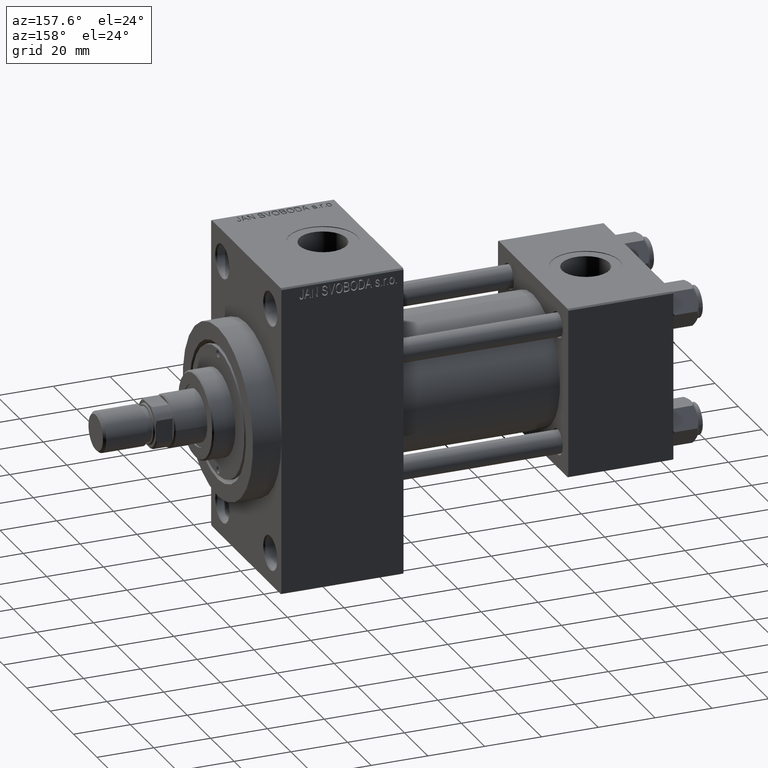
[diagram: clean part render]
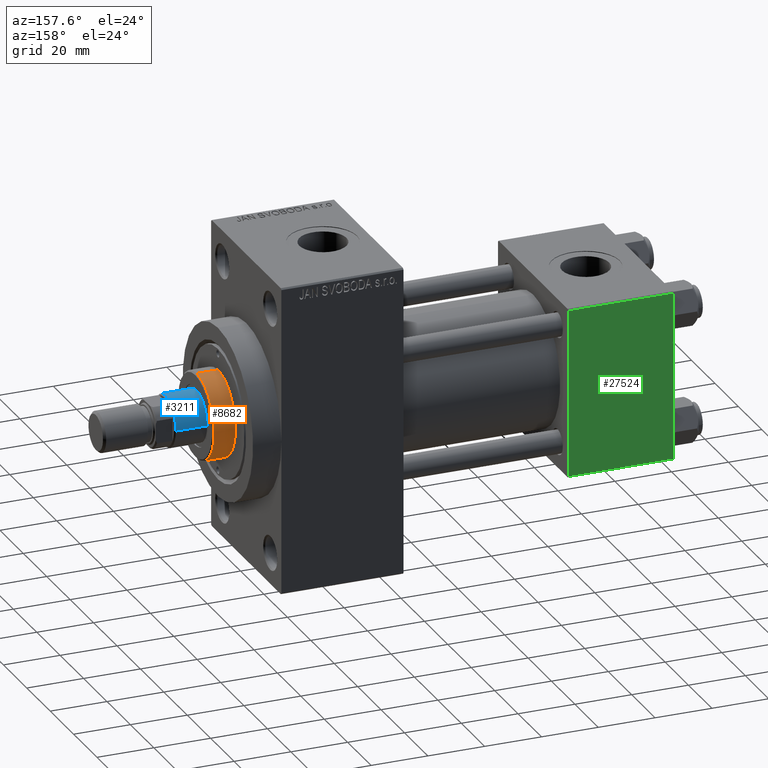
[diagram: same view with three faces highlighted in distinct colors, each labeled with its STEP entity id]
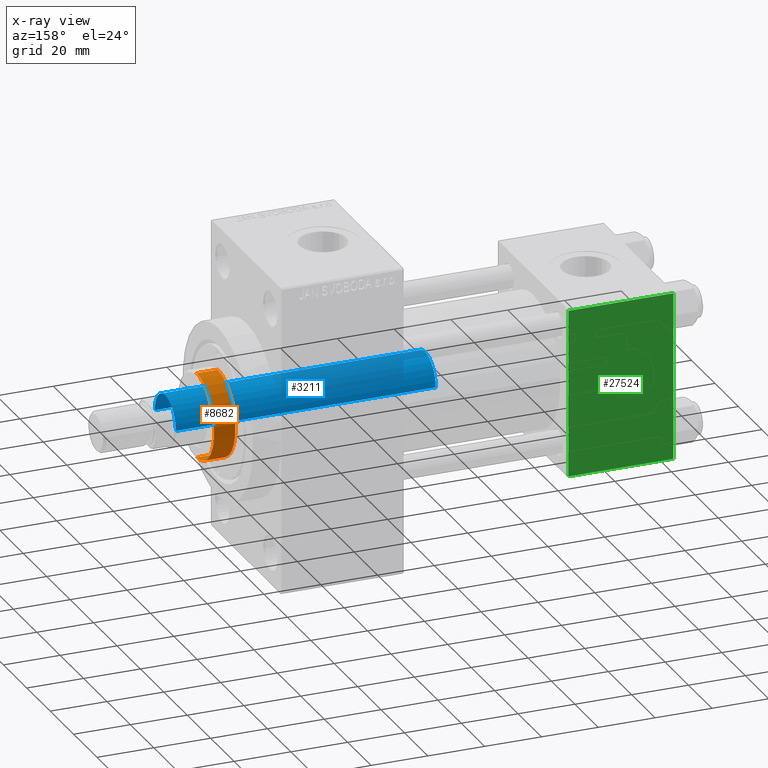
[diagram: x-ray of the same camera — body ghosted, the three highlighted faces saturated]
A machine part, auxiliary view with three faces highlighted in distinct colors.
The next image is the same camera in x-ray (body ghosted, the three faces saturated) — at least one of them is partly hidden behind the body in this view.
Their STEP definitions:

[orange] entity #8682 — the highlighted cylindrical surface (partial cylindrical patch) has radius 15 mm, axis along (-1, 0, 0).
#685 = CARTESIAN_POINT ( 'NONE',  ( 0.000000000000000000, 0.000000000000000000, 43.25999999999999801 ) ) ;
#737 = EDGE_CURVE ( 'NONE', #4008, #37728, #9173, .T. ) ;
#892 = CARTESIAN_POINT ( 'NONE',  ( 15.00000000000000000, 1.836970198721029589E-15, 43.25999999999999801 ) ) ;
#4008 = VERTEX_POINT ( 'NONE', #18270 ) ;
#5260 = DIRECTION ( 'NONE',  ( -0.000000000000000000, -0.000000000000000000, -1.000000000000000000 ) ) ;
#6298 = VECTOR ( 'NONE', #32289, 1000.000000000000000 ) ;
#6790 = DIRECTION ( 'NONE',  ( 0.000000000000000000, 0.000000000000000000, -1.000000000000000000 ) ) ;
#7928 = AXIS2_PLACEMENT_3D ( 'NONE', #685, #15440, #18830 ) ;
#8682 = ADVANCED_FACE ( 'NONE', ( #28177 ), #17467, .T. ) ;
#9173 = CIRCLE ( 'NONE', #47831, 15.00000000000000000 ) ;
#10243 = EDGE_CURVE ( 'NONE', #37728, #41841, #22689, .T. ) ;
#10257 = LINE ( 'NONE', #46835, #6298 ) ;
#11371 = EDGE_LOOP ( 'NONE', ( #32033, #39041, #35416, #38859 ) ) ;
#12518 = CARTESIAN_POINT ( 'NONE',  ( -15.00000000000000000, 0.000000000000000000, 51.25999999999999801 ) ) ;
#14759 = DIRECTION ( 'NONE',  ( 1.000000000000000000, 0.000000000000000000, 0.000000000000000000 ) ) ;
#15440 = DIRECTION ( 'NONE',  ( 0.000000000000000000, 0.000000000000000000, 1.000000000000000000 ) ) ;
#17467 = CYLINDRICAL_SURFACE ( 'NONE', #21998, 15.00000000000000000 ) ;
#18270 = CARTESIAN_POINT ( 'NONE',  ( 15.00000000000000000, 1.836970198721029589E-15, 50.75999999999998380 ) ) ;
#18830 = DIRECTION ( 'NONE',  ( 1.000000000000000000, 0.000000000000000000, 0.000000000000000000 ) ) ;
#20504 = VECTOR ( 'NONE', #5260, 1000.000000000000000 ) ;
#21355 = CARTESIAN_POINT ( 'NONE',  ( 0.000000000000000000, 0.000000000000000000, 51.25999999999999801 ) ) ;
#21998 = AXIS2_PLACEMENT_3D ( 'NONE', #21355, #28887, #43656 ) ;
#22689 = LINE ( 'NONE', #12518, #20504 ) ;
#25427 = CARTESIAN_POINT ( 'NONE',  ( 0.000000000000000000, 0.000000000000000000, 50.75999999999998380 ) ) ;
#28177 = FACE_OUTER_BOUND ( 'NONE', #11371, .T. ) ;
#28661 = VERTEX_POINT ( 'NONE', #892 ) ;
#28887 = DIRECTION ( 'NONE',  ( -0.000000000000000000, -0.000000000000000000, -1.000000000000000000 ) ) ;
#32033 = ORIENTED_EDGE ( 'NONE', *, *, #40829, .F. ) ;
#32289 = DIRECTION ( 'NONE',  ( -0.000000000000000000, -0.000000000000000000, -1.000000000000000000 ) ) ;
#33075 = CARTESIAN_POINT ( 'NONE',  ( -15.00000000000000000, 0.000000000000000000, 43.25999999999999801 ) ) ;
#35416 = ORIENTED_EDGE ( 'NONE', *, *, #10243, .T. ) ;
#37728 = VERTEX_POINT ( 'NONE', #43449 ) ;
#38859 = ORIENTED_EDGE ( 'NONE', *, *, #42415, .T. ) ;
#39041 = ORIENTED_EDGE ( 'NONE', *, *, #737, .T. ) ;
#40829 = EDGE_CURVE ( 'NONE', #4008, #28661, #10257, .T. ) ;
#41841 = VERTEX_POINT ( 'NONE', #33075 ) ;
#42415 = EDGE_CURVE ( 'NONE', #41841, #28661, #44297, .T. ) ;
#43449 = CARTESIAN_POINT ( 'NONE',  ( -15.00000000000000000, 0.000000000000000000, 50.75999999999998380 ) ) ;
#43656 = DIRECTION ( 'NONE',  ( -1.000000000000000000, 0.000000000000000000, 0.000000000000000000 ) ) ;
#44297 = CIRCLE ( 'NONE', #7928, 15.00000000000000000 ) ;
#46835 = CARTESIAN_POINT ( 'NONE',  ( 15.00000000000000000, 1.836970198721029589E-15, 51.25999999999999801 ) ) ;
#47831 = AXIS2_PLACEMENT_3D ( 'NONE', #25427, #6790, #14759 ) ;

[blue] entity #3211 — the highlighted cylindrical surface (edge-blend (fillet) strip) has radius 9 mm, axis along (-1, 0, 0).
#1089 = CYLINDRICAL_SURFACE ( 'NONE', #30066, 9.000000000000000000 ) ;
#1694 = ORIENTED_EDGE ( 'NONE', *, *, #30764, .T. ) ;
#3211 = ADVANCED_FACE ( 'NONE', ( #37646 ), #1089, .T. ) ;
#3297 = AXIS2_PLACEMENT_3D ( 'NONE', #15994, #38285, #14863 ) ;
#3437 = LINE ( 'NONE', #6828, #6445 ) ;
#3589 = EDGE_CURVE ( 'NONE', #13049, #40551, #4913, .T. ) ;
#4913 = LINE ( 'NONE', #16016, #7616 ) ;
#6343 = ORIENTED_EDGE ( 'NONE', *, *, #32728, .F. ) ;
#6445 = VECTOR ( 'NONE', #10692, 1000.000000000000000 ) ;
#6684 = CARTESIAN_POINT ( 'NONE',  ( -9.000000000000000000, 0.000000000000000000, 38.00000000000000000 ) ) ;
#6828 = CARTESIAN_POINT ( 'NONE',  ( 9.000000000000000000, 1.102182119232617714E-15, 130.0000000000000000 ) ) ;
#7616 = VECTOR ( 'NONE', #37590, 1000.000000000000000 ) ;
#10692 = DIRECTION ( 'NONE',  ( -0.000000000000000000, -0.000000000000000000, -1.000000000000000000 ) ) ;
#11331 = EDGE_LOOP ( 'NONE', ( #6343, #1694, #19505, #44582 ) ) ;
#13049 = VERTEX_POINT ( 'NONE', #45908 ) ;
#13305 = CIRCLE ( 'NONE', #35738, 9.000000000000000000 ) ;
#14863 = DIRECTION ( 'NONE',  ( 1.000000000000000000, 0.000000000000000000, 0.000000000000000000 ) ) ;
#15994 = CARTESIAN_POINT ( 'NONE',  ( 0.000000000000000000, 0.000000000000000000, 129.5000000000000000 ) ) ;
#16016 = CARTESIAN_POINT ( 'NONE',  ( -9.000000000000000000, 0.000000000000000000, 130.0000000000000000 ) ) ;
#18171 = DIRECTION ( 'NONE',  ( 1.000000000000000000, 0.000000000000000000, 0.000000000000000000 ) ) ;
#18410 = CARTESIAN_POINT ( 'NONE',  ( 0.000000000000000000, 0.000000000000000000, 38.00000000000000000 ) ) ;
#18842 = CARTESIAN_POINT ( 'NONE',  ( 9.000000000000000000, 1.102182119232617714E-15, 38.00000000000000000 ) ) ;
#19505 = ORIENTED_EDGE ( 'NONE', *, *, #3589, .T. ) ;
#23106 = CARTESIAN_POINT ( 'NONE',  ( 0.000000000000000000, 0.000000000000000000, 130.0000000000000000 ) ) ;
#25411 = CARTESIAN_POINT ( 'NONE',  ( 9.000000000000000000, 1.102182119232617714E-15, 129.5000000000000000 ) ) ;
#28053 = CIRCLE ( 'NONE', #3297, 9.000000000000000000 ) ;
#28317 = VERTEX_POINT ( 'NONE', #25411 ) ;
#30066 = AXIS2_PLACEMENT_3D ( 'NONE', #23106, #45886, #34024 ) ;
#30764 = EDGE_CURVE ( 'NONE', #28317, #13049, #28053, .T. ) ;
#32494 = DIRECTION ( 'NONE',  ( 0.000000000000000000, 0.000000000000000000, 1.000000000000000000 ) ) ;
#32728 = EDGE_CURVE ( 'NONE', #28317, #45640, #3437, .T. ) ;
#34024 = DIRECTION ( 'NONE',  ( -1.000000000000000000, 0.000000000000000000, 0.000000000000000000 ) ) ;
#35738 = AXIS2_PLACEMENT_3D ( 'NONE', #18410, #32494, #18171 ) ;
#37590 = DIRECTION ( 'NONE',  ( -0.000000000000000000, -0.000000000000000000, -1.000000000000000000 ) ) ;
#37646 = FACE_OUTER_BOUND ( 'NONE', #11331, .T. ) ;
#38285 = DIRECTION ( 'NONE',  ( 0.000000000000000000, 0.000000000000000000, -1.000000000000000000 ) ) ;
#40551 = VERTEX_POINT ( 'NONE', #6684 ) ;
#44582 = ORIENTED_EDGE ( 'NONE', *, *, #45331, .T. ) ;
#45331 = EDGE_CURVE ( 'NONE', #40551, #45640, #13305, .T. ) ;
#45640 = VERTEX_POINT ( 'NONE', #18842 ) ;
#45886 = DIRECTION ( 'NONE',  ( -0.000000000000000000, -0.000000000000000000, -1.000000000000000000 ) ) ;
#45908 = CARTESIAN_POINT ( 'NONE',  ( -9.000000000000000000, 0.000000000000000000, 129.5000000000000000 ) ) ;

[green] entity #27524 — the highlighted planar face has unit normal (0, 1, 0).
#271 = EDGE_LOOP ( 'NONE', ( #24318, #43404, #19412, #25265 ) ) ;
#1221 = VERTEX_POINT ( 'NONE', #22326 ) ;
#1503 = VECTOR ( 'NONE', #28394, 1000.000000000000000 ) ;
#1984 = DIRECTION ( 'NONE',  ( -0.000000000000000000, 1.000000000000000000, 0.000000000000000000 ) ) ;
#2990 = LINE ( 'NONE', #24314, #37998 ) ;
#5668 = CARTESIAN_POINT ( 'NONE',  ( 0.000000000000000000, 29.99999999999999289, 30.00000000000000000 ) ) ;
#5954 = EDGE_CURVE ( 'NONE', #26389, #27079, #28632, .T. ) ;
#8599 = AXIS2_PLACEMENT_3D ( 'NONE', #41963, #1984, #16727 ) ;
#15605 = CARTESIAN_POINT ( 'NONE',  ( 0.000000000000000000, 29.99999999999999289, -29.50000000000000000 ) ) ;
#16477 = DIRECTION ( 'NONE',  ( 0.000000000000000000, 0.000000000000000000, -1.000000000000000000 ) ) ;
#16727 = DIRECTION ( 'NONE',  ( 0.000000000000000000, -0.000000000000000000, 1.000000000000000000 ) ) ;
#19412 = ORIENTED_EDGE ( 'NONE', *, *, #35453, .F. ) ;
#20134 = FACE_OUTER_BOUND ( 'NONE', #271, .T. ) ;
#22326 = CARTESIAN_POINT ( 'NONE',  ( 0.000000000000000000, 29.99999999999999289, 29.50000000000000000 ) ) ;
#23336 = DIRECTION ( 'NONE',  ( 0.000000000000000000, 0.000000000000000000, -1.000000000000000000 ) ) ;
#24314 = CARTESIAN_POINT ( 'NONE',  ( 37.00000000000000000, 29.99999999999999289, 29.50000000000000000 ) ) ;
#24318 = ORIENTED_EDGE ( 'NONE', *, *, #25385, .T. ) ;
#24707 = LINE ( 'NONE', #45819, #32470 ) ;
#25265 = ORIENTED_EDGE ( 'NONE', *, *, #40831, .T. ) ;
#25385 = EDGE_CURVE ( 'NONE', #40492, #26389, #24707, .T. ) ;
#26389 = VERTEX_POINT ( 'NONE', #37047 ) ;
#26942 = PLANE ( 'NONE',  #8599 ) ;
#27079 = VERTEX_POINT ( 'NONE', #15605 ) ;
#27524 = ADVANCED_FACE ( 'NONE', ( #20134 ), #26942, .T. ) ;
#27535 = CARTESIAN_POINT ( 'NONE',  ( 37.00000000000000000, 29.99999999999999289, 29.50000000000000000 ) ) ;
#28394 = DIRECTION ( 'NONE',  ( -1.000000000000000000, 0.000000000000000000, 0.000000000000000000 ) ) ;
#28632 = LINE ( 'NONE', #43400, #1503 ) ;
#32470 = VECTOR ( 'NONE', #16477, 1000.000000000000000 ) ;
#35453 = EDGE_CURVE ( 'NONE', #1221, #27079, #45872, .T. ) ;
#37047 = CARTESIAN_POINT ( 'NONE',  ( 37.00000000000000000, 29.99999999999999289, -29.50000000000000000 ) ) ;
#37998 = VECTOR ( 'NONE', #39567, 1000.000000000000000 ) ;
#39567 = DIRECTION ( 'NONE',  ( 1.000000000000000000, 0.000000000000000000, 0.000000000000000000 ) ) ;
#40492 = VERTEX_POINT ( 'NONE', #27535 ) ;
#40831 = EDGE_CURVE ( 'NONE', #1221, #40492, #2990, .T. ) ;
#41709 = VECTOR ( 'NONE', #23336, 1000.000000000000000 ) ;
#41963 = CARTESIAN_POINT ( 'NONE',  ( 37.00000000000000000, 29.99999999999999289, 30.00000000000000000 ) ) ;
#43400 = CARTESIAN_POINT ( 'NONE',  ( 37.00000000000000000, 29.99999999999999289, -29.50000000000000000 ) ) ;
#43404 = ORIENTED_EDGE ( 'NONE', *, *, #5954, .T. ) ;
#45819 = CARTESIAN_POINT ( 'NONE',  ( 37.00000000000000000, 29.99999999999999289, 30.00000000000000000 ) ) ;
#45872 = LINE ( 'NONE', #5668, #41709 ) ;